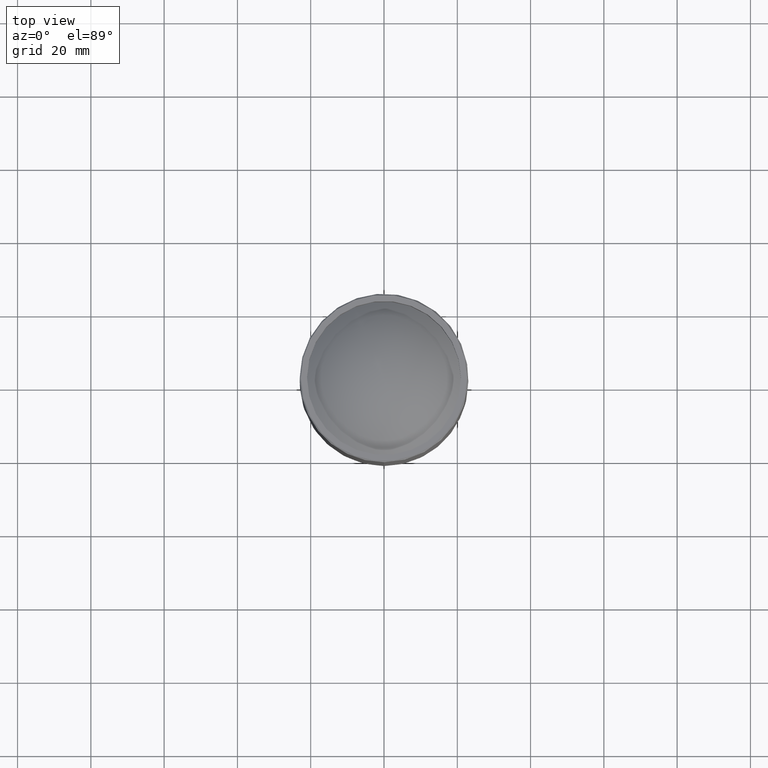
[diagram: clean part render]
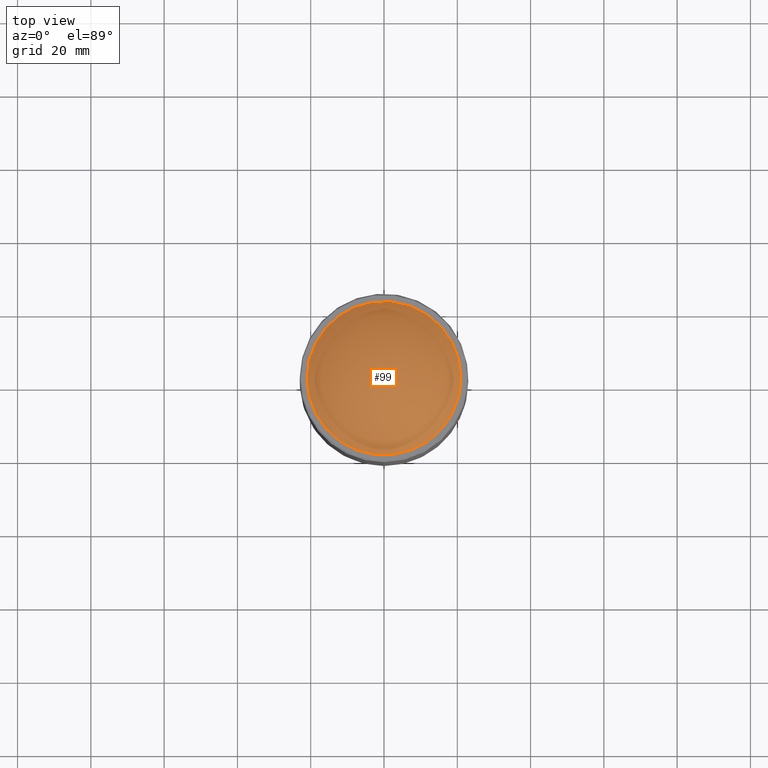
[diagram: same view with one face highlighted and labeled with its STEP entity id]
A machine part, top view. The second image highlights one B-rep face of the part: STEP entity #99.
In plain terms, the highlighted spherical surface has radius 31.2095 mm.
Its self-contained STEP definition (entity closure, byte-faithful):
#99 = ADVANCED_FACE ( 'NONE', ( #708 ), #321, .T. ) ;
#246 = DIRECTION ( 'NONE',  ( -0.3830490080632378835, 0.9237280213470681067, 0.000000000000000000 ) ) ;
#321 = SPHERICAL_SURFACE ( 'NONE', #514, 31.20951493132240273 ) ;
#384 = EDGE_LOOP ( 'NONE', ( #612 ) ) ;
#443 = CIRCLE ( 'NONE', #1047, 21.00000000000000000 ) ;
#510 = DIRECTION ( 'NONE',  ( -1.000000000000000000, 0.000000000000000000, 0.000000000000000000 ) ) ;
#514 = AXIS2_PLACEMENT_3D ( 'NONE', #562, #979, #246 ) ;
#560 = VERTEX_POINT ( 'NONE', #800 ) ;
#562 = CARTESIAN_POINT ( 'NONE',  ( 0.000000000000000000, -1.474514954580286030E-14, -701.6680567275545854 ) ) ;
#612 = ORIENTED_EDGE ( 'NONE', *, *, #980, .F. ) ;
#708 = FACE_OUTER_BOUND ( 'NONE', #384, .T. ) ;
#800 = CARTESIAN_POINT ( 'NONE',  ( -21.00000000000000711, -1.766194502186925708E-14, -678.5805314758425766 ) ) ;
#922 = CARTESIAN_POINT ( 'NONE',  ( -6.938893903907228378E-15, -1.766194502186925708E-14, -678.5805314758425766 ) ) ;
#979 = DIRECTION ( 'NONE',  ( 4.665676044949140993E-17, 1.934749774458438248E-17, 1.000000000000000000 ) ) ;
#980 = EDGE_CURVE ( 'NONE', #560, #560, #443, .T. ) ;
#1022 = DIRECTION ( 'NONE',  ( 0.000000000000000000, 0.000000000000000000, -1.000000000000000000 ) ) ;
#1047 = AXIS2_PLACEMENT_3D ( 'NONE', #922, #1022, #510 ) ;